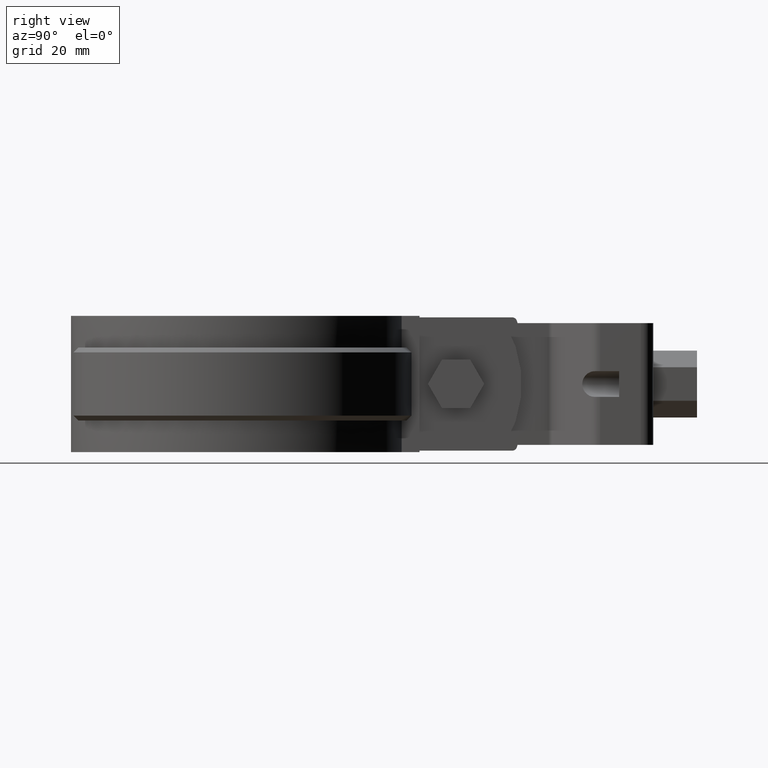
[diagram: clean part render]
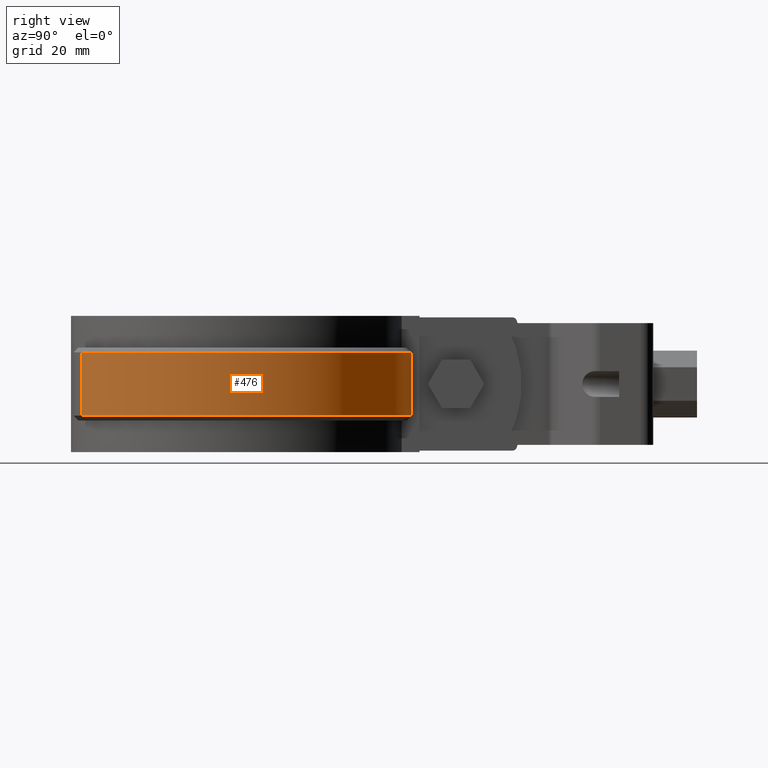
[diagram: same view with one face highlighted and labeled with its STEP entity id]
A machine part, right view. The second image highlights one B-rep face of the part: STEP entity #476.
In plain terms, the highlighted cylindrical surface (partial cylindrical patch) has radius 36.245 mm, axis along (0, 0, -1).
Its self-contained STEP definition (entity closure, byte-faithful):
#476 = ADVANCED_FACE( '', ( #945 ), #946, .T. );
#945 = FACE_OUTER_BOUND( '', #2200, .T. );
#946 = CYLINDRICAL_SURFACE( '', #2201, 36.2450000000000 );
#2200 = EDGE_LOOP( '', ( #4868, #4869, #4870, #4871 ) );
#2201 = AXIS2_PLACEMENT_3D( '', #4872, #4873, #4874 );
#4868 = ORIENTED_EDGE( '', *, *, #7028, .T. );
#4869 = ORIENTED_EDGE( '', *, *, #7021, .T. );
#4870 = ORIENTED_EDGE( '', *, *, #7139, .F. );
#4871 = ORIENTED_EDGE( '', *, *, #7151, .T. );
#4872 = CARTESIAN_POINT( '', ( 8.67361737988404E-016, 0.000000000000000, -20.0000000000000 ) );
#4873 = DIRECTION( '', ( 0.000000000000000, 0.000000000000000, -1.00000000000000 ) );
#4874 = DIRECTION( '', ( 0.171773235086843, 0.985136516279749, 0.000000000000000 ) );
#7021 = EDGE_CURVE( '', #8110, #8114, #8116, .T. );
#7028 = EDGE_CURVE( '', #8127, #8110, #8128, .T. );
#7139 = EDGE_CURVE( '', #8304, #8114, #8305, .T. );
#7151 = EDGE_CURVE( '', #8304, #8127, #8320, .T. );
#8110 = VERTEX_POINT( '', #10927 );
#8114 = VERTEX_POINT( '', #10934 );
#8116 = CIRCLE( '', #10937, 36.2450000000000 );
#8127 = VERTEX_POINT( '', #10992 );
#8128 = LINE( '', #10993, #10994 );
#8304 = VERTEX_POINT( '', #11774 );
#8305 = LINE( '', #11775, #11776 );
#8320 = CIRCLE( '', #11796, 36.2450000000000 );
#10927 = CARTESIAN_POINT( '', ( 6.10000000000001, 35.7280005737797, -6.00000000000000 ) );
#10934 = CARTESIAN_POINT( '', ( 17.0871064701963, -31.9645243586726, -6.00000000000000 ) );
#10937 = AXIS2_PLACEMENT_3D( '', #13670, #13671, #13672 );
#10992 = CARTESIAN_POINT( '', ( 6.10000000000001, 35.7280005737797, -19.0000000000000 ) );
#10993 = CARTESIAN_POINT( '', ( 6.10000000000001, 35.7280005737797, -20.0000000000000 ) );
#10994 = VECTOR( '', #13678, 1000.00000000000 );
#11774 = CARTESIAN_POINT( '', ( 17.0871064701963, -31.9645243586726, -19.0000000000000 ) );
#11775 = CARTESIAN_POINT( '', ( 17.0871064701963, -31.9645243586726, -20.0000000000000 ) );
#11776 = VECTOR( '', #13804, 1000.00000000000 );
#11796 = AXIS2_PLACEMENT_3D( '', #13828, #13829, #13830 );
#13670 = CARTESIAN_POINT( '', ( 8.67361737988404E-016, 0.000000000000000, -6.00000000000000 ) );
#13671 = DIRECTION( '', ( 0.000000000000000, 0.000000000000000, -1.00000000000000 ) );
#13672 = DIRECTION( '', ( -1.00000000000000, 0.000000000000000, 0.000000000000000 ) );
#13678 = DIRECTION( '', ( 0.000000000000000, 0.000000000000000, 1.00000000000000 ) );
#13804 = DIRECTION( '', ( 0.000000000000000, 0.000000000000000, 1.00000000000000 ) );
#13828 = CARTESIAN_POINT( '', ( 8.67361737988404E-016, 0.000000000000000, -19.0000000000000 ) );
#13829 = DIRECTION( '', ( 0.000000000000000, 0.000000000000000, 1.00000000000000 ) );
#13830 = DIRECTION( '', ( 1.00000000000000, 0.000000000000000, 0.000000000000000 ) );